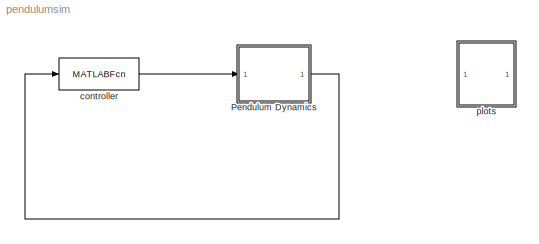
MODEL pendulumsim
KIND model
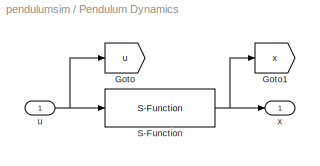
BLOCK [SubSystem] Pendulum Dynamics
  FunctionWithSeparateData = off
  MaskDisplay = image(imread('pend.jpg'))
  MaskHideContents = off
  MaskIconFrame = on
  MaskIconOpaque = on
  MaskIconRotate = none
  MaskIconUnits = autoscale
  MaskPortRotate = default
  MinAlgLoopOccurrences = off
  Opaque = off
  Ports = [1, 1]
  PropExecContextOutsideSubsystem = off
  RTWSystemCode = Auto
  RequestExecContextInheritance = off
  SID = 2
BLOCK [Goto] Pendulum Dynamics/Goto
  GotoTag = u
  SID = 28
  TagVisibility = global
BLOCK [Goto] Pendulum Dynamics/Goto1
  GotoTag = x
  SID = 29
  TagVisibility = global
BLOCK [S-Function] Pendulum Dynamics/S-Function
  EnableBusSupport = off
  FunctionName = pendulum_dynamics
  Parameters = P
  Ports = [1, 1]
  SID = 4
BLOCK [Inport] Pendulum Dynamics/u
  IconDisplay = Port number
  SID = 3
BLOCK [Outport] Pendulum Dynamics/x
  IconDisplay = Port number
  SID = 5
BLOCK [MATLABFcn] controller
  MATLABFcn = controller(u,P)
  OutputDimensions = 1
  Ports = [1, 1]
  SID = 14
  SampleTime = P.Ts
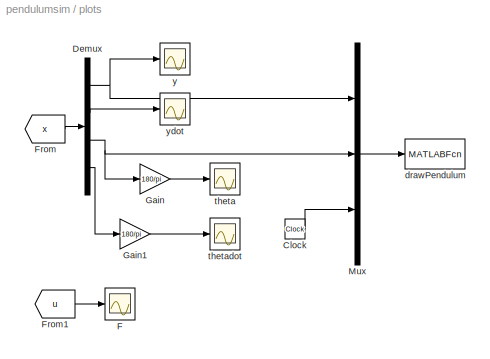
BLOCK [SubSystem] plots
  FunctionWithSeparateData = off
  MaskDisplay = image(imread('tv.jpg'))
  MaskHideContents = off
  MaskIconFrame = on
  MaskIconOpaque = on
  MaskIconRotate = none
  MaskIconUnits = autoscale
  MaskPortRotate = default
  MinAlgLoopOccurrences = off
  Opaque = off
  Ports = []
  PropExecContextOutsideSubsystem = off
  RTWSystemCode = Auto
  RequestExecContextInheritance = off
  SID = 15
BLOCK [Clock] plots/Clock
  Decimation = 1
  SID = 17
BLOCK [Demux] plots/Demux
  DisplayOption = bar
  Ports = [1, 4]
  SID = 18
BLOCK [Scope] plots/F
  DataFormat = StructureWithTime
  Floating = off
  NumInputPorts = 1
  Ports = [1]
  SID = 1
  SampleTime = 0
  SaveName = ScopeData4
  TimeRange = 40
  YMax = 15
  YMin = -10
  ZoomMode = xonly
BLOCK [From] plots/From
  GotoTag = x
  SID = 30
  TagVisibility = global
BLOCK [From] plots/From1
  GotoTag = u
  SID = 31
  TagVisibility = global
BLOCK [Gain] plots/Gain
  Gain = 180/pi
  OutDataTypeStr = Inherit: Inherit via internal rule
  ParamDataTypeStr = Inherit: Inherit via internal rule
  SID = 19
  SaturateOnIntegerOverflow = off
BLOCK [Gain] plots/Gain1
  Gain = 180/pi
  OutDataTypeStr = Inherit: Inherit via internal rule
  ParamDataTypeStr = Inherit: Inherit via internal rule
  SID = 20
  SaturateOnIntegerOverflow = off
BLOCK [Mux] plots/Mux
  DisplayOption = bar
  Inputs = 3
  Ports = [3, 1]
  SID = 21
BLOCK [MATLABFcn] plots/drawPendulum
  MATLABFcn = drawPendulum(u)
  OutputDimensions = 0
  Ports = [1]
  SID = 22
  SampleTime = 0.1
BLOCK [Scope] plots/theta
  DataFormat = StructureWithTime
  Floating = off
  NumInputPorts = 1
  Ports = [1]
  SID = 23
  SampleTime = 0
  SaveName = ScopeData2
  TimeRange = 40
  YMax = 1
  YMin = -2
BLOCK [Scope] plots/thetadot
  DataFormat = StructureWithTime
  Floating = off
  NumInputPorts = 1
  Ports = [1]
  SID = 24
  SampleTime = 0
  SaveName = ScopeData3
  TimeRange = 40
  YMax = 1
  YMin = -2
BLOCK [Scope] plots/y
  DataFormat = StructureWithTime
  Floating = off
  NumInputPorts = 1
  Ports = [1]
  SID = 25
  SampleTime = 0
  TimeRange = 40
  YMin = -1
BLOCK [Scope] plots/ydot
  DataFormat = StructureWithTime
  Floating = off
  NumInputPorts = 1
  Ports = [1]
  SID = 26
  SampleTime = 0
  SaveName = ScopeData1
  TimeRange = 40
  YMax = 0.4000000000000001
  YMin = -1
  ZoomMode = yonly
NET Pendulum Dynamics/S-Function:1 -> Pendulum Dynamics/Goto1:1, Pendulum Dynamics/x:1
NET Pendulum Dynamics/u:1 -> Pendulum Dynamics/Goto:1, Pendulum Dynamics/S-Function:1
LINE Pendulum Dynamics:1 -> controller:1
LINE controller:1 -> Pendulum Dynamics:1
LINE plots/Clock:1 -> plots/Mux:3
NET plots/Demux:1 -> plots/Mux:1, plots/y:1
LINE plots/Demux:2 -> plots/ydot:1
NET plots/Demux:3 -> plots/Gain:1, plots/Mux:2
LINE plots/Demux:4 -> plots/Gain1:1
LINE plots/From1:1 -> plots/F:1
LINE plots/From:1 -> plots/Demux:1
LINE plots/Gain1:1 -> plots/thetadot:1
LINE plots/Gain:1 -> plots/theta:1
LINE plots/Mux:1 -> plots/drawPendulum:1
note: NET lines group one-source signal fan-out (src -> all destinations, sorted); 1:1 wires keep LINE
